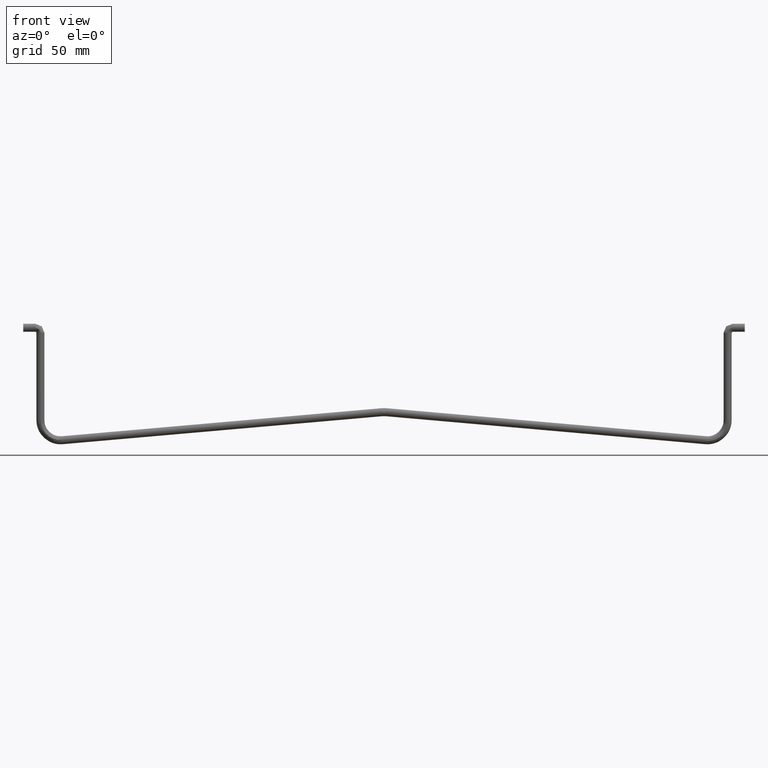
[diagram: clean part render]
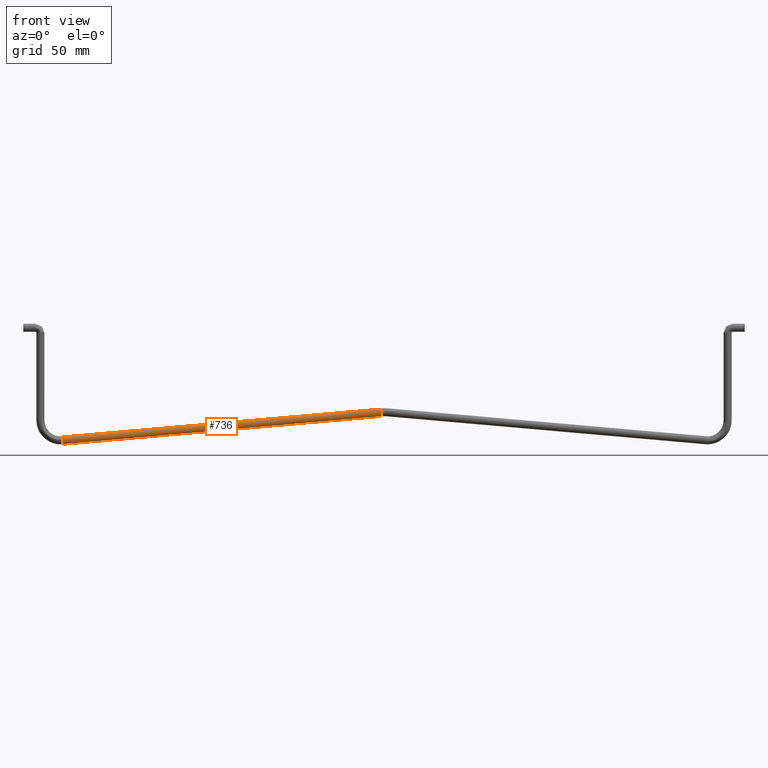
[diagram: same view with one face highlighted and labeled with its STEP entity id]
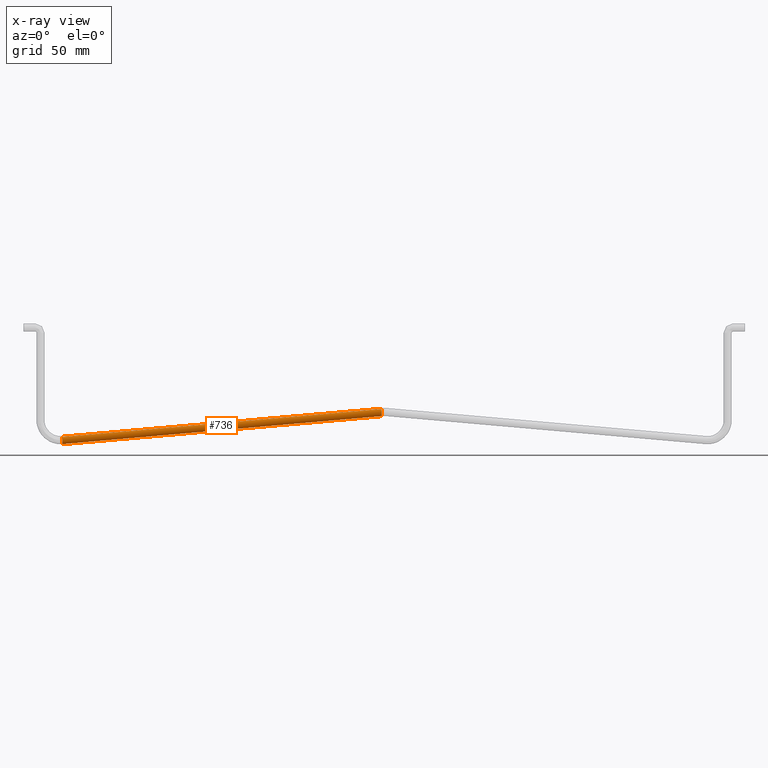
[diagram: x-ray of the same camera — body ghosted, the highlighted face saturated]
A machine part, front view. The second image highlights one B-rep face of the part: STEP entity #736.
The next image is the same camera in x-ray: the body ghosted, the highlighted face saturated — about 0% of this face is hidden behind the body in this view.
In plain terms, the highlighted face is a freeform B-spline surface patch.
Its self-contained STEP definition (entity closure, byte-faithful):
#598=CARTESIAN_POINT('',(-164.238769412726070,-1.216089083240858,-56.728024374066912));
#599=CARTESIAN_POINT('',(-164.229439233880240,-1.355726746217225,-56.834564094411647));
#600=CARTESIAN_POINT('',(-164.218126034039390,-1.474554673620248,-56.963747593158168));
#601=CARTESIAN_POINT('',(-164.089484776108380,-2.825735088851567,-58.432680168960488));
#602=CARTESIAN_POINT('',(-163.971606781201390,-1.351180415231319,-59.778708880697870));
#603=CARTESIAN_POINT('',(-163.853728786294430,0.123374258388929,-61.124737592435253));
#604=CARTESIAN_POINT('',(-163.982370044225490,1.474554673620249,-59.655805016632932));
#605=CARTESIAN_POINT('',(-164.111011302156500,2.825735088851567,-58.186872440830612));
#606=CARTESIAN_POINT('',(-164.228889297063490,1.351180415231319,-56.840843729093230));
#607=CARTESIAN_POINT('',(2.712080043085515,-1.216089083240856,-42.107361968977600));
#608=CARTESIAN_POINT('',(2.721410221931388,-1.355726746217223,-42.213901689322313));
#609=CARTESIAN_POINT('',(2.732723421772167,-1.474554673620246,-42.343085188068848));
#610=CARTESIAN_POINT('',(2.861364679703168,-2.825735088851565,-43.812017763871175));
#611=CARTESIAN_POINT('',(2.979242674610156,-1.351180415231316,-45.158046475608550));
#612=CARTESIAN_POINT('',(3.097120669517143,0.123374258388932,-46.504075187345919));
#613=CARTESIAN_POINT('',(2.968479411586142,1.474554673620251,-45.035142611543613));
#614=CARTESIAN_POINT('',(2.839838153655141,2.825735088851570,-43.566210035741292));
#615=CARTESIAN_POINT('',(2.721960158748153,1.351180415231322,-42.220181324003910));
#623=(BOUNDED_SURFACE()B_SPLINE_SURFACE(2,1,((#598,#607),(#599,#608),(#600,#609),(#601,#610),(#602,#611),(#603,#612),(#604,#613),(#605,#614),(#606,#615)),.UNSPECIFIED.,.F.,.F.,.U.)B_SPLINE_SURFACE_WITH_KNOTS((3,2,2,2,3),(2,2),(0.0,0.397645019878174,3.711353518862953,7.025062017847733,10.338770516832509),(0.0,167.589826371354290),.UNSPECIFIED.)GEOMETRIC_REPRESENTATION_ITEM()RATIONAL_B_SPLINE_SURFACE(((0.938140952186599,0.938140952186599),(0.964852813742386,0.964852813742386),(1.0,1.0),(0.707106781186548,0.707106781186548),(1.0,1.0),(0.707106781186548,0.707106781186548),(1.0,1.0),(0.707106781186548,0.707106781186548),(1.0,1.0)))REPRESENTATION_ITEM('')SURFACE());
#624=CARTESIAN_POINT('',(-1.209203356484822,-1.995131345892879,-44.184650200597403));
#625=VERTEX_POINT('',#624);
#626=CARTESIAN_POINT('',(-1.359891884382767,-1.216089247245802,-42.463963616226302));
#627=VERTEX_POINT('',#626);
#628=CARTESIAN_POINT('',(-1.209203356484822,-1.995131345892879,-44.184650200597403));
#629=CARTESIAN_POINT('',(-1.223518708363258,-2.006606973830975,-44.021185640602198));
#630=CARTESIAN_POINT('',(-1.259623078248645,-1.984578399605254,-43.608916002496592));
#631=CARTESIAN_POINT('',(-1.314225204042426,-1.747506707918509,-42.985423646228860));
#632=CARTESIAN_POINT('',(-1.346815405269387,-1.412130923099214,-42.613281699845658));
#633=CARTESIAN_POINT('',(-1.359891884382767,-1.216089247245802,-42.463963616226302));
#634=B_SPLINE_CURVE_WITH_KNOTS('',3,(#628,#629,#630,#631,#632,#633),.UNSPECIFIED.,.F.,.U.,(4,1,1,4),(0.000000349336481,0.493519468538258,1.233750337341123,1.974060139863370),.UNSPECIFIED.);
#635=EDGE_CURVE('',#625,#627,#634,.T.);
#636=ORIENTED_EDGE('',*,*,#635,.T.);
#637=CARTESIAN_POINT('',(-160.266113874835410,-1.216088844176160,-56.380120268141070));
#638=VERTEX_POINT('',#637);
#639=CARTESIAN_POINT('',(-160.266113874835410,-1.216088844176160,-56.380120268141070));
#640=CARTESIAN_POINT('',(-1.359891884382767,-1.216089247245802,-42.463963616226302));
#641=QUASI_UNIFORM_CURVE('',1,(#639,#640),.UNSPECIFIED.,.F.,.U.);
#642=EDGE_CURVE('',#638,#627,#641,.T.);
#643=ORIENTED_EDGE('',*,*,#642,.F.);
#644=CARTESIAN_POINT('',(-160.138548273330510,-1.996053456345523,-57.836770141847467));
#645=VERTEX_POINT('',#644);
#646=CARTESIAN_POINT('',(-160.138548273330510,-1.996053456345523,-57.836770141847467));
#647=CARTESIAN_POINT('',(-160.166459915080510,-1.976588287237166,-57.518051859246917));
#648=CARTESIAN_POINT('',(-160.215216876981600,-1.800414192022590,-56.961304416699470));
#649=CARTESIAN_POINT('',(-160.252908729303190,-1.414078416448125,-56.530907575574282));
#650=CARTESIAN_POINT('',(-160.266113874835410,-1.216088844176160,-56.380120268141070));
#651=B_SPLINE_CURVE_WITH_KNOTS('',3,(#646,#647,#648,#649,#650),.UNSPECIFIED.,.F.,.U.,(4,1,4),(0.000000261402939,0.961278668882308,1.708941671467563),.UNSPECIFIED.);
#652=EDGE_CURVE('',#645,#638,#651,.T.);
#653=ORIENTED_EDGE('',*,*,#652,.F.);
#654=CARTESIAN_POINT('',(-159.953110981378190,2.948067E-016,-59.954246894704170));
#655=VERTEX_POINT('',#654);
#656=CARTESIAN_POINT('',(-159.953110981378190,2.948067E-016,-59.954246894704170));
#657=CARTESIAN_POINT('',(-159.953084648973600,-0.272311992582473,-59.954547574038990));
#658=CARTESIAN_POINT('',(-159.962958124218690,-0.816651891615411,-59.841804037721793));
#659=CARTESIAN_POINT('',(-160.003038119601200,-1.470596724069300,-59.384137413738152));
#660=CARTESIAN_POINT('',(-160.063800360587890,-1.922081879910239,-58.690303770173593));
#661=CARTESIAN_POINT('',(-160.111874579730400,-2.015801752732888,-58.141352484940541));
#662=CARTESIAN_POINT('',(-160.138548273330510,-1.996053456345523,-57.836770141847467));
#663=B_SPLINE_CURVE_WITH_KNOTS('',3,(#656,#657,#658,#659,#660,#661,#662),.UNSPECIFIED.,.F.,.U.,(4,1,1,1,4),(0.000000576203340,0.816907104431088,1.633806120275228,2.348594742289117,3.267610799703482),.UNSPECIFIED.);
#664=EDGE_CURVE('',#655,#645,#663,.T.);
#665=ORIENTED_EDGE('',*,*,#664,.F.);
#666=CARTESIAN_POINT('',(-160.106695328140490,1.985604005683971,-58.200493505804843));
#667=VERTEX_POINT('',#666);
#668=CARTESIAN_POINT('',(-160.106695328140490,1.985604005683971,-58.200493505804843));
#669=CARTESIAN_POINT('',(-160.083126350741710,1.953348183267545,-58.469623627833087));
#670=CARTESIAN_POINT('',(-160.039769675161610,1.785787373917166,-58.964706091205102));
#671=CARTESIAN_POINT('',(-159.988907315320600,1.285598698960645,-59.545494679486552));
#672=CARTESIAN_POINT('',(-159.959438427841890,0.664909566560249,-59.881994865689663));
#673=CARTESIAN_POINT('',(-159.953104181405190,0.211568829583368,-59.954324542428303));
#674=CARTESIAN_POINT('',(-159.953110981378190,2.948067E-016,-59.954246894704170));
#675=B_SPLINE_CURVE_WITH_KNOTS('',3,(#668,#669,#670,#671,#672,#673,#674),.UNSPECIFIED.,.F.,.U.,(4,1,1,1,4),(0.000000705368689,0.816117523114526,1.541501862294370,2.266982237422941,2.901730133985529),.UNSPECIFIED.);
#676=EDGE_CURVE('',#667,#655,#675,.T.);
#677=ORIENTED_EDGE('',*,*,#676,.F.);
#678=CARTESIAN_POINT('',(-160.256233778261390,1.351179953291413,-56.492939382871043));
#679=VERTEX_POINT('',#678);
#680=CARTESIAN_POINT('',(-160.256233778261390,1.351179953291413,-56.492939382871043));
#681=CARTESIAN_POINT('',(-160.236465400133110,1.599621722804479,-56.718671124742052));
#682=CARTESIAN_POINT('',(-160.188652579820710,1.954449681459253,-57.264637581483072));
#683=CARTESIAN_POINT('',(-160.132387649920100,2.021547291234547,-57.907117249657517));
#684=CARTESIAN_POINT('',(-160.106695328140490,1.985604005683971,-58.200493505804843));
#685=B_SPLINE_CURVE_WITH_KNOTS('',3,(#680,#681,#682,#683,#684),.UNSPECIFIED.,.F.,.U.,(4,1,4),(0.000000362086096,1.008371044401473,1.898243754836179),.UNSPECIFIED.);
#686=EDGE_CURVE('',#679,#667,#685,.T.);
#687=ORIENTED_EDGE('',*,*,#686,.F.);
#688=CARTESIAN_POINT('',(-1.350011833700060,1.351179739293265,-42.576782229102307));
#689=VERTEX_POINT('',#688);
#690=CARTESIAN_POINT('',(-160.256233778261390,1.351179953291413,-56.492939382871043));
#691=CARTESIAN_POINT('',(-1.350011833700060,1.351179739293265,-42.576782229102307));
#692=QUASI_UNIFORM_CURVE('',1,(#690,#691),.UNSPECIFIED.,.F.,.U.);
#693=EDGE_CURVE('',#679,#689,#692,.T.);
#694=ORIENTED_EDGE('',*,*,#693,.T.);
#695=CARTESIAN_POINT('',(-1.222457637171890,1.999961179890668,-44.033301836205069));
#696=VERTEX_POINT('',#695);
#697=CARTESIAN_POINT('',(-1.350011833700060,1.351179739293265,-42.576782229102307));
#698=CARTESIAN_POINT('',(-1.335878019826017,1.528259136562037,-42.738173838247427));
#699=CARTESIAN_POINT('',(-1.297114878643282,1.864926843288048,-43.180803533722397));
#700=CARTESIAN_POINT('',(-1.249385856474675,1.998609188953364,-43.725813094429817));
#701=CARTESIAN_POINT('',(-1.222457637171890,1.999961179890668,-44.033301836205069));
#702=B_SPLINE_CURVE_WITH_KNOTS('',3,(#697,#698,#699,#700,#701),.UNSPECIFIED.,.F.,.U.,(4,1,4),(0.000000216062043,0.720031410623793,1.645783652663235),.UNSPECIFIED.);
#703=EDGE_CURVE('',#689,#696,#702,.T.);
#704=ORIENTED_EDGE('',*,*,#703,.T.);
#705=CARTESIAN_POINT('',(-1.046902794955144,0.025132084803629,-46.037932626603187));
#706=VERTEX_POINT('',#705);
#707=CARTESIAN_POINT('',(-1.222457637171890,1.999961179890668,-44.033301836205069));
#708=CARTESIAN_POINT('',(-1.199707086154405,2.001850188615705,-44.293086496616631));
#709=CARTESIAN_POINT('',(-1.157023162682247,1.907634732866465,-44.780486936091201));
#710=CARTESIAN_POINT('',(-1.100641217440884,1.506323645954972,-45.424302749012362));
#711=CARTESIAN_POINT('',(-1.058661771202247,0.870594722724455,-45.903658883145688));
#712=CARTESIAN_POINT('',(-1.047185024082993,0.318543328566061,-46.034709900350173));
#713=CARTESIAN_POINT('',(-1.046902794955144,0.025132084803629,-46.037932626603187));
#714=B_SPLINE_CURVE_WITH_KNOTS('',3,(#707,#708,#709,#710,#711,#712,#713),.UNSPECIFIED.,.F.,.U.,(4,1,1,1,4),(0.000000601033284,0.782308551367516,1.466847845037155,2.249118136175998,3.129232402369297),.UNSPECIFIED.);
#715=EDGE_CURVE('',#696,#706,#714,.T.);
#716=ORIENTED_EDGE('',*,*,#715,.T.);
#717=CARTESIAN_POINT('',(-1.046889018629025,2.219026E-015,-46.038089936182807));
#718=VERTEX_POINT('',#717);
#719=CARTESIAN_POINT('',(-1.046902794955144,0.025132084803629,-46.037932626603187));
#720=CARTESIAN_POINT('',(-1.046889018629025,2.219026E-015,-46.038089936182807));
#721=QUASI_UNIFORM_CURVE('',1,(#719,#720),.UNSPECIFIED.,.F.,.U.);
#722=EDGE_CURVE('',#706,#718,#721,.T.);
#723=ORIENTED_EDGE('',*,*,#722,.T.);
#724=CARTESIAN_POINT('',(-1.046889018629025,2.219026E-015,-46.038089936182807));
#725=CARTESIAN_POINT('',(-1.046858485632297,-0.281506115386379,-46.038438587263911));
#726=CARTESIAN_POINT('',(-1.056842447896894,-0.812731866947826,-45.924433425278743));
#727=CARTESIAN_POINT('',(-1.096582083236807,-1.465211197193067,-45.470653308317573));
#728=CARTESIAN_POINT('',(-1.149804966851591,-1.869634897507298,-44.862910279345442));
#729=CARTESIAN_POINT('',(-1.190152566705744,-1.979975339890760,-44.402187919305973));
#730=CARTESIAN_POINT('',(-1.209203356484822,-1.995131345892879,-44.184650200597403));
#731=B_SPLINE_CURVE_WITH_KNOTS('',3,(#724,#725,#726,#727,#728,#729,#730),.UNSPECIFIED.,.F.,.U.,(4,1,1,1,4),(0.000000830799082,0.844400095623222,1.594919069810441,2.345543586702524,3.002287812957782),.UNSPECIFIED.);
#732=EDGE_CURVE('',#718,#625,#731,.T.);
#733=ORIENTED_EDGE('',*,*,#732,.T.);
#734=EDGE_LOOP('',(#636,#643,#653,#665,#677,#687,#694,#704,#716,#723,#733));
#735=FACE_OUTER_BOUND('',#734,.T.);
#736=ADVANCED_FACE('',(#735),#623,.T.);